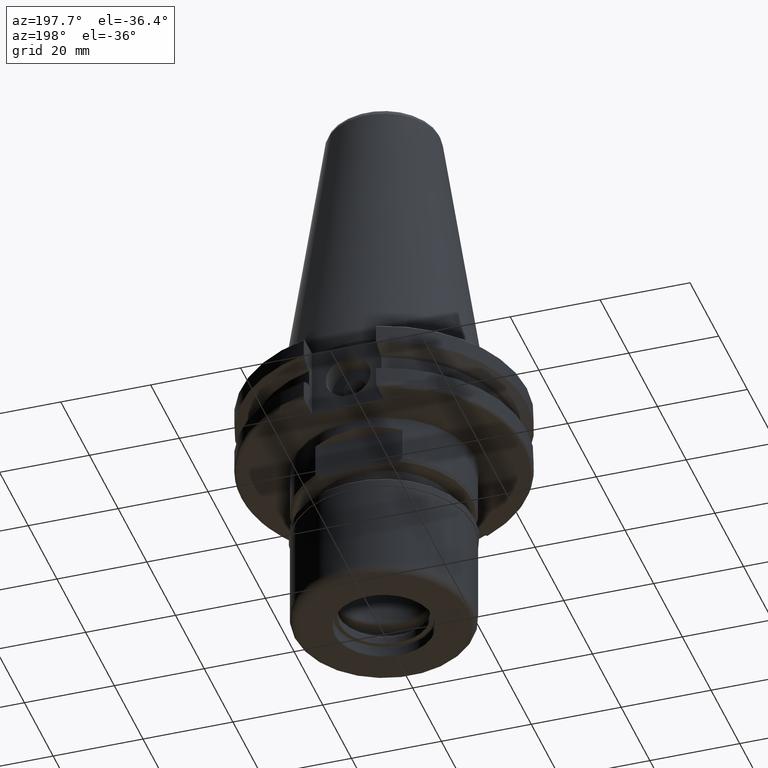
[diagram: clean part render]
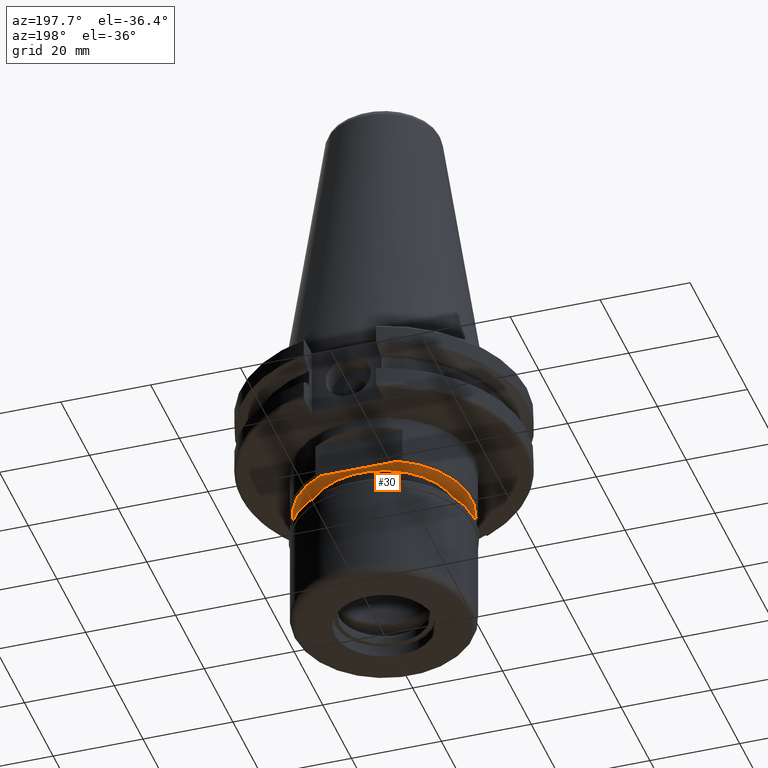
[diagram: same view with one face highlighted and labeled with its STEP entity id]
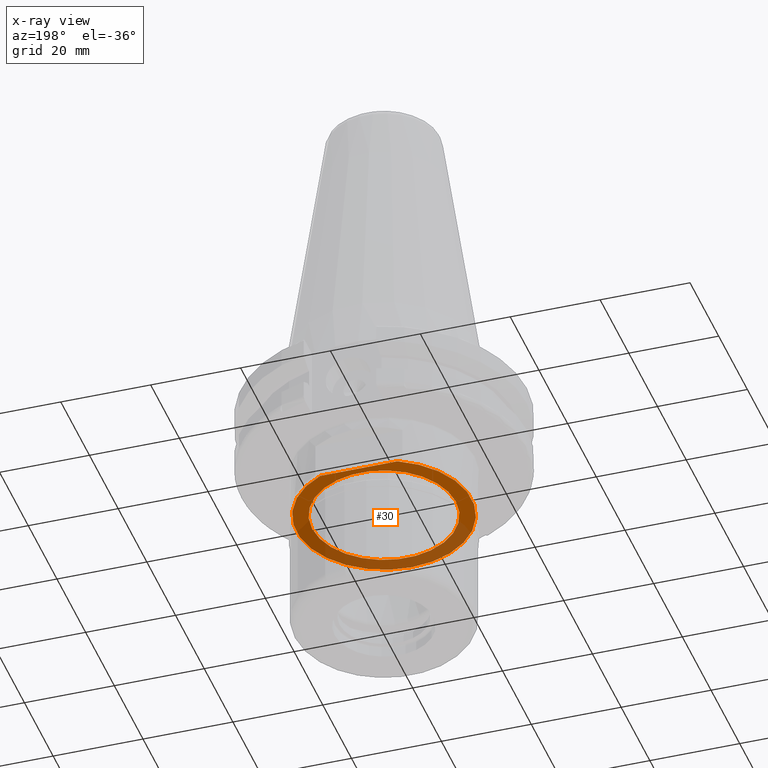
[diagram: x-ray of the same camera — body ghosted, the highlighted face saturated]
A machine part, auxiliary view. The second image highlights one B-rep face of the part: STEP entity #30.
The next image is the same camera in x-ray: the body ghosted, the highlighted face saturated — about 45% of this face is hidden behind the body in this view.
In plain terms, the highlighted planar face has unit normal (0, -0, 1).
Its self-contained STEP definition (entity closure, byte-faithful):
#30 = ADVANCED_FACE ( 'NONE', ( #1867, #225 ), #1629, .F. ) ;
#104 = ORIENTED_EDGE ( 'NONE', *, *, #998, .F. ) ;
#221 = AXIS2_PLACEMENT_3D ( 'NONE', #1963, #1765, #1480 ) ;
#225 = FACE_BOUND ( 'NONE', #582, .T. ) ;
#257 = DIRECTION ( 'NONE',  ( 1.000000000000000000, 0.0000000000000000000, 0.0000000000000000000 ) ) ;
#279 = VECTOR ( 'NONE', #979, 1000.000000000000000 ) ;
#297 = VERTEX_POINT ( 'NONE', #1490 ) ;
#321 = ORIENTED_EDGE ( 'NONE', *, *, #2045, .T. ) ;
#481 = EDGE_CURVE ( 'NONE', #297, #861, #491, .T. ) ;
#491 = LINE ( 'NONE', #1292, #279 ) ;
#582 = EDGE_LOOP ( 'NONE', ( #321 ) ) ;
#690 = CARTESIAN_POINT ( 'NONE',  ( 0.0000000000000000000, 15.99999999999998579, -30.00000000000000000 ) ) ;
#783 = VERTEX_POINT ( 'NONE', #1203 ) ;
#861 = VERTEX_POINT ( 'NONE', #999 ) ;
#914 = AXIS2_PLACEMENT_3D ( 'NONE', #690, #1783, #1959 ) ;
#935 = EDGE_LOOP ( 'NONE', ( #104, #982 ) ) ;
#979 = DIRECTION ( 'NONE',  ( 1.000000000000000000, -0.0000000000000000000, -0.0000000000000000000 ) ) ;
#982 = ORIENTED_EDGE ( 'NONE', *, *, #481, .T. ) ;
#998 = EDGE_CURVE ( 'NONE', #297, #861, #1853, .T. ) ;
#999 = CARTESIAN_POINT ( 'NONE',  ( 8.602325267042617796, 17.49999999999999289, -30.00000000000000000 ) ) ;
#1154 = CIRCLE ( 'NONE', #221, 15.99999999999998579 ) ;
#1163 = AXIS2_PLACEMENT_3D ( 'NONE', #1811, #1995, #257 ) ;
#1203 = CARTESIAN_POINT ( 'NONE',  ( 15.99999999999998579, 0.0000000000000000000, -30.00000000000000000 ) ) ;
#1292 = CARTESIAN_POINT ( 'NONE',  ( -20.50000000000001066, 17.49999999999999289, -30.00000000000000000 ) ) ;
#1480 = DIRECTION ( 'NONE',  ( 1.000000000000000000, 0.0000000000000000000, 0.0000000000000000000 ) ) ;
#1490 = CARTESIAN_POINT ( 'NONE',  ( -8.602325267042617796, 17.49999999999999289, -30.00000000000000000 ) ) ;
#1629 = PLANE ( 'NONE',  #914 ) ;
#1765 = DIRECTION ( 'NONE',  ( -0.0000000000000000000, -0.0000000000000000000, 1.000000000000000000 ) ) ;
#1783 = DIRECTION ( 'NONE',  ( 0.0000000000000000000, -0.0000000000000000000, 1.000000000000000000 ) ) ;
#1811 = CARTESIAN_POINT ( 'NONE',  ( 0.0000000000000000000, 0.0000000000000000000, -30.00000000000000000 ) ) ;
#1853 = CIRCLE ( 'NONE', #1163, 19.49999999999998934 ) ;
#1867 = FACE_OUTER_BOUND ( 'NONE', #935, .T. ) ;
#1959 = DIRECTION ( 'NONE',  ( 1.000000000000000000, 0.0000000000000000000, 0.0000000000000000000 ) ) ;
#1963 = CARTESIAN_POINT ( 'NONE',  ( 0.0000000000000000000, 0.0000000000000000000, -30.00000000000000000 ) ) ;
#1995 = DIRECTION ( 'NONE',  ( -0.0000000000000000000, -0.0000000000000000000, 1.000000000000000000 ) ) ;
#2045 = EDGE_CURVE ( 'NONE', #783, #783, #1154, .T. ) ;